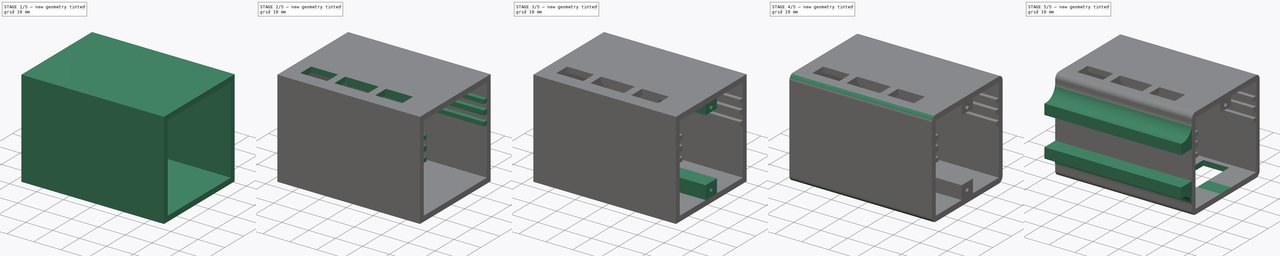
[diagram: build sequence overview — one tinted view per stage of 5, left to right]
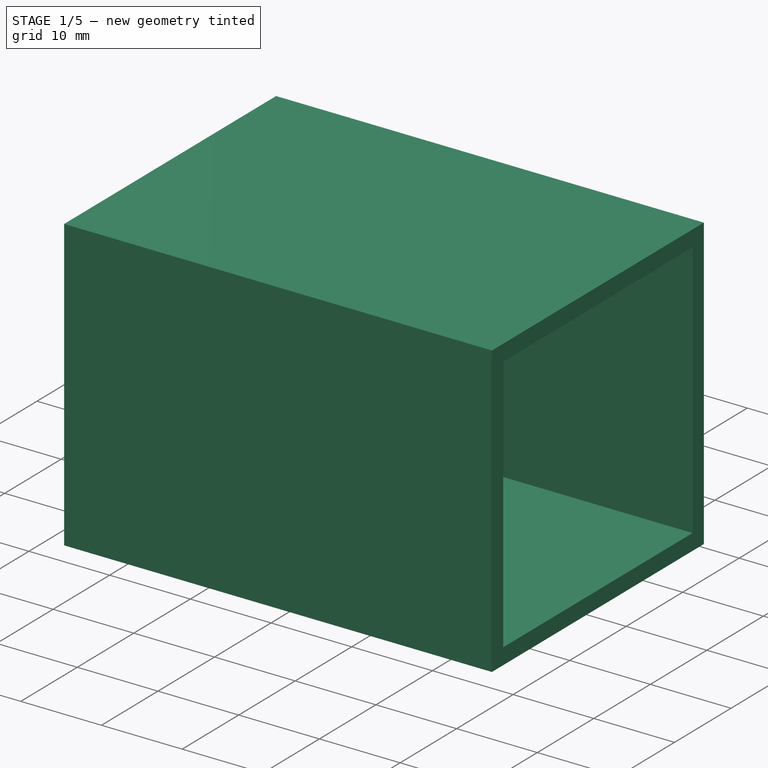
[diagram: stage 1 of 5 — iso view after this stage's code; geometry added in this stage tinted green]
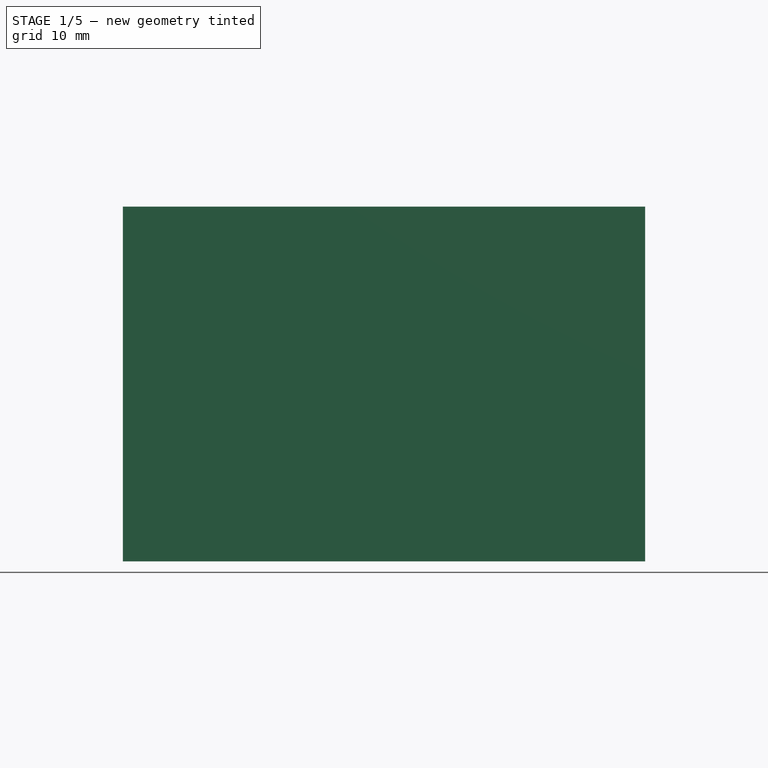
[diagram: stage 1 of 5 — front view after this stage's code; geometry added in this stage tinted green]
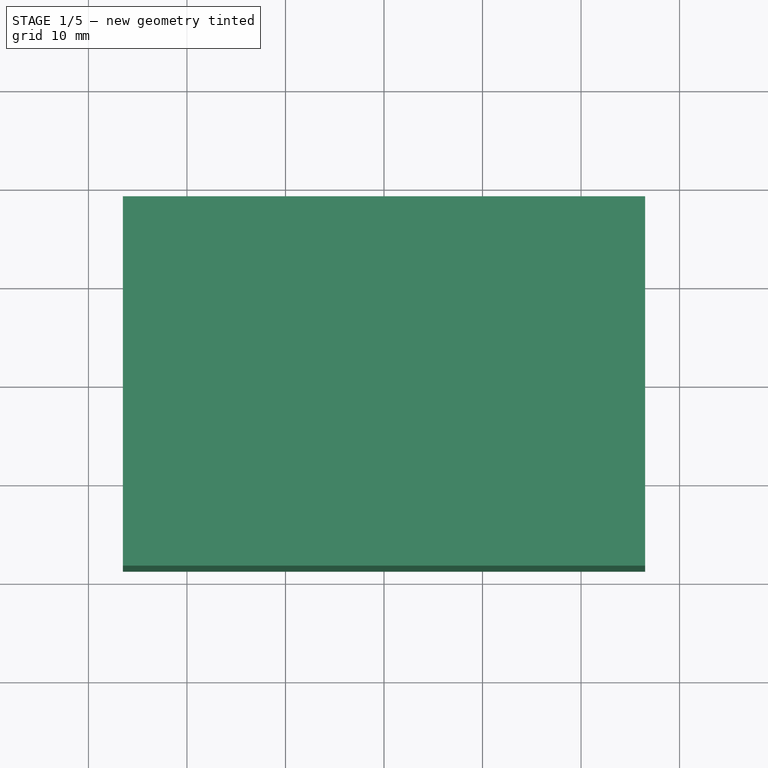
[diagram: stage 1 of 5 — top view after this stage's code; geometry added in this stage tinted green]
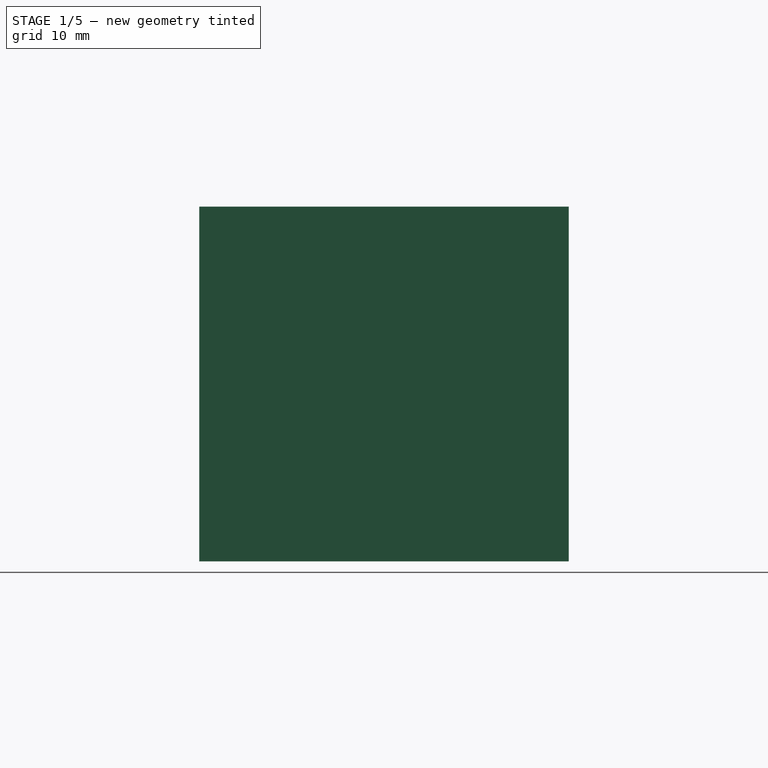
[diagram: stage 1 of 5 — right view after this stage's code; geometry added in this stage tinted green]
FCSTD DOCUMENT  (FreeCAD 0.19R24291 (Git))
Label: case_mk3
License: All rights reserved
LicenseURL: http://en.wikipedia.org/wiki/All_rights_reserved
objects: Sketcher::SketchObject×14, PartDesign::Pad×7, PartDesign::Pocket×7, PartDesign::Chamfer×2, PartDesign::Fillet×2, PartDesign::Body×1
note: 51 computed .brp shape members not serialized (recipe doc carries the construction recipe); baked Part::Feature solids carry a one-line shape summary decoded from their .brp

FEATURE [Sketcher::SketchObject] Sketch
  FullyConstrained = true
  MapMode = 5
  Support = -> [XY_Plane]
  sketch-geometry (8):
    g0: LineSegment StartX=-24.5 StartY=16.75 StartZ=0 EndX=24.5 EndY=16.75 EndZ=0
    g1: LineSegment StartX=24.5 StartY=16.75 StartZ=0 EndX=24.5 EndY=-16.75 EndZ=0
    g2: LineSegment StartX=24.5 StartY=-16.75 StartZ=0 EndX=-24.5 EndY=-16.75 EndZ=0
    g3: LineSegment StartX=-24.5 StartY=-16.75 StartZ=0 EndX=-24.5 EndY=16.75 EndZ=0
    g4: LineSegment StartX=-26.5 StartY=18.75 StartZ=0 EndX=26.5 EndY=18.75 EndZ=0
    g5: LineSegment StartX=26.5 StartY=18.75 StartZ=0 EndX=26.5 EndY=-18.75 EndZ=0
    g6: LineSegment StartX=26.5 StartY=-18.75 StartZ=0 EndX=-26.5 EndY=-18.75 EndZ=0
    g7: LineSegment StartX=-26.5 StartY=-18.75 StartZ=0 EndX=-26.5 EndY=18.75 EndZ=0
  constraints (24):
    c: Coincident(g0,g1)
    c: Coincident(g1,g2)
    c: Coincident(g2,g3)
    c: Coincident(g3,g0)
    c: Horizontal(g0)
    c: Horizontal(g2)
    c: Vertical(g1)
    c: Vertical(g3)
    c: DistanceY(g1,g1) = 33.5
    c: DistanceX(g0,g0) = 49
    c: DistanceX(g0,g-1) = 24.5
    c: DistanceY(g-1,g0) = 16.75
    c: Coincident(g4,g5)
    c: Coincident(g5,g6)
    c: Coincident(g6,g7)
    c: Coincident(g7,g4)
    c: Horizontal(g4)
    c: Horizontal(g6)
    c: Vertical(g5)
    c: Vertical(g7)
    c: DistanceX(g4,g0) = 2
    c: DistanceY(g0,g4) = 2
    c: DistanceX(g1,g5) = 2
    c: DistanceY(g5,g1) = 2
FEATURE [PartDesign::Pad] Pad
  Direction = (1,1,1)
  Length = 32
  Length2 = 100
  Profile = -> Sketch
  Type = 0
FEATURE [Sketcher::SketchObject] Sketch001
  ExternalGeometry = -> [Pad]
  FullyConstrained = true
  MapMode = 5
  Placement = pos=(0,0,32) rot=(0,0,1;0rad)
  Support = -> [Pad]
  sketch-geometry (4):
    g0: LineSegment StartX=-26.5 StartY=18.75 StartZ=0 EndX=26.5 EndY=18.75 EndZ=0
    g1: LineSegment StartX=26.5 StartY=18.75 StartZ=0 EndX=26.5 EndY=-18.75 EndZ=0
    g2: LineSegment StartX=26.5 StartY=-18.75 StartZ=0 EndX=-26.5 EndY=-18.75 EndZ=0
    g3: LineSegment StartX=-26.5 StartY=-18.75 StartZ=0 EndX=-26.5 EndY=18.75 EndZ=0
  constraints (11):
    c: Coincident(g0,g1)
    c: Coincident(g1,g2)
    c: Coincident(g2,g3)
    c: Coincident(g3,g0)
    c: Horizontal(g0)
    c: Horizontal(g2)
    c: Vertical(g1)
    c: Vertical(g3)
    c: Coincident(g-3,g1)
    c: DistanceX(g-4,g0) = 0
    c: DistanceY(g0,g-4) = 0
FEATURE [PartDesign::Pad] Pad001
  BaseFeature = -> Pad
  Direction = (1,1,1)
  Length = 2
  Length2 = 100
  Profile = -> Sketch001
  Type = 0
FEATURE [Sketcher::SketchObject] Sketch002
  ExternalGeometry = -> [Pad001]
  FullyConstrained = true
  MapMode = 5
  Placement = pos=(0,0,0) rot=(1,0,0;3.14159rad)
  Support = -> [Pad001]
  sketch-geometry (4):
    g0: LineSegment StartX=-26.5 StartY=18.75 StartZ=0 EndX=26.5 EndY=18.75 EndZ=0
    g1: LineSegment StartX=26.5 StartY=18.75 StartZ=0 EndX=26.5 EndY=-18.75 EndZ=0
    g2: LineSegment StartX=26.5 StartY=-18.75 StartZ=0 EndX=-26.5 EndY=-18.75 EndZ=0
    g3: LineSegment StartX=-26.5 StartY=-18.75 StartZ=0 EndX=-26.5 EndY=18.75 EndZ=0
  constraints (11):
    c: Coincident(g0,g1)
    c: Coincident(g1,g2)
    c: Coincident(g2,g3)
    c: Coincident(g3,g0)
    c: Horizontal(g0)
    c: Horizontal(g2)
    c: Vertical(g1)
    c: Vertical(g3)
    c: Coincident(g-3,g1)
    c: DistanceX(g-4,g0) = 0
    c: DistanceY(g0,g-4) = 0
FEATURE [PartDesign::Pad] Pad002
  BaseFeature = -> Pad001
  Direction = (1,1,1)
  Length = 2
  Length2 = 100
  Profile = -> Sketch002
  Type = 0
FEATURE [Sketcher::SketchObject] Sketch003
  ExternalGeometry = -> [Pad002]
  FullyConstrained = true
  MapMode = 5
  Placement = pos=(26.5,0,0) rot=(0.57735,0.57735,0.57735;2.0944rad)
  Support = -> [Pad002]
  sketch-geometry (4):
    g0: LineSegment StartX=-16.75 StartY=32 StartZ=0 EndX=16.75 EndY=32 EndZ=0
    g1: LineSegment StartX=16.75 StartY=32 StartZ=0 EndX=16.75 EndY=0 EndZ=0
    g2: LineSegment StartX=16.75 StartY=0 StartZ=0 EndX=-16.75 EndY=0 EndZ=0
    g3: LineSegment StartX=-16.75 StartY=0 StartZ=0 EndX=-16.75 EndY=32 EndZ=0
  constraints (12):
    c: Coincident(g0,g1)
    c: Coincident(g1,g2)
    c: Coincident(g2,g3)
    c: Coincident(g3,g0)
    c: Horizontal(g0)
    c: Horizontal(g2)
    c: Vertical(g1)
    c: Vertical(g3)
    c: PointOnObject(g1,g-1)
    c: DistanceY(g0,g-3) = 0
    c: DistanceX(g0,g-3) = 2
    c: DistanceX(g-4,g2) = 2
FEATURE [PartDesign::Pocket] Pocket
  BaseFeature = -> Pad002
  Length = 2
  Length2 = 100
  Profile = -> Sketch003
  Type = 0
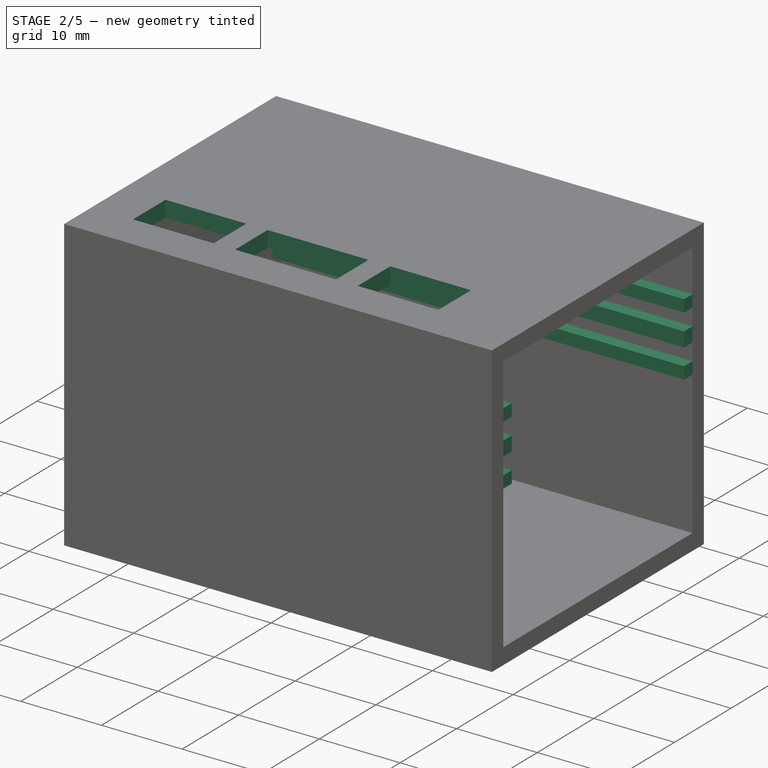
[diagram: stage 2 of 5 — iso view after this stage's code; geometry added in this stage tinted green]
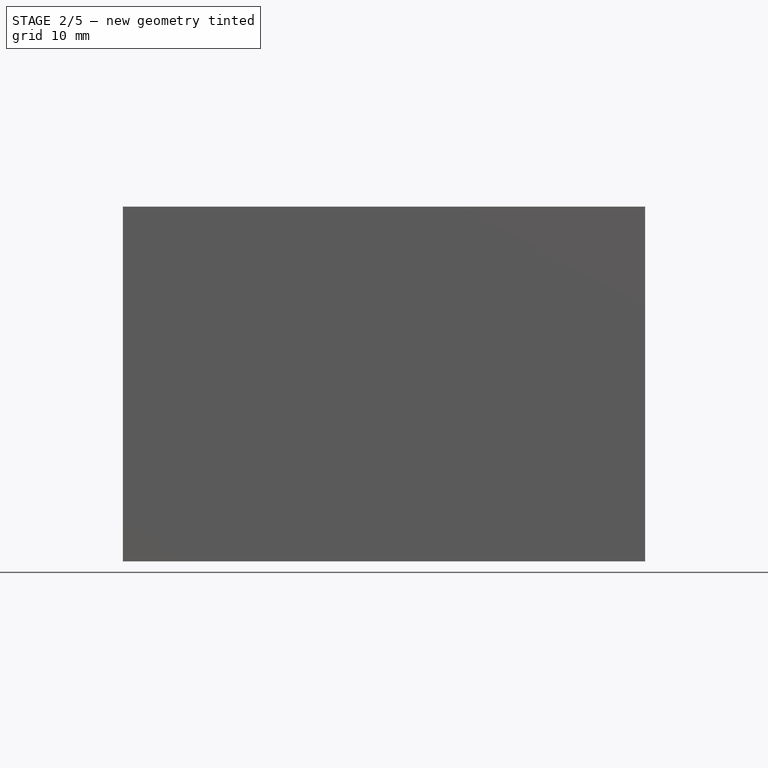
[diagram: stage 2 of 5 — front view after this stage's code; geometry added in this stage tinted green]
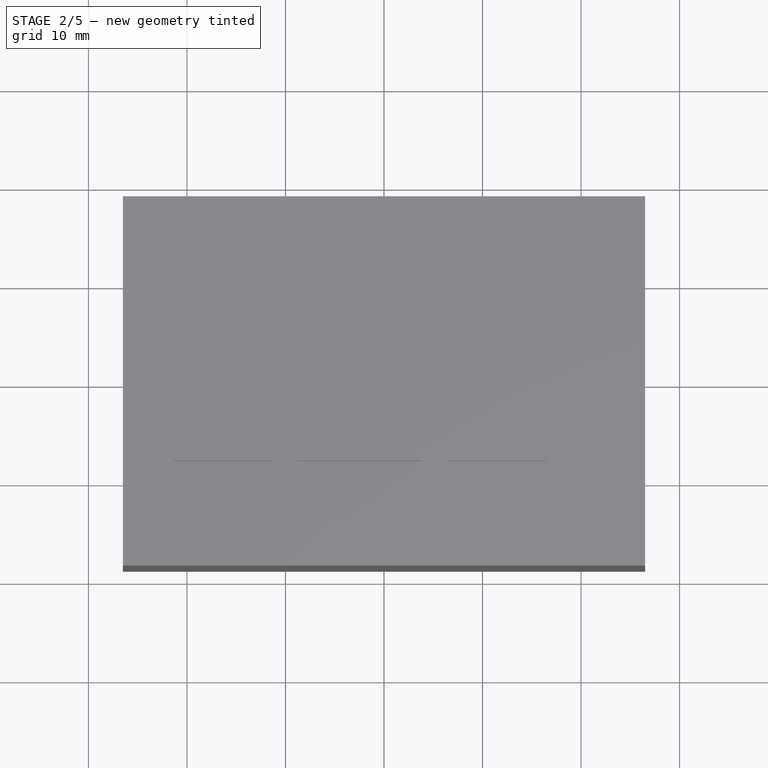
[diagram: stage 2 of 5 — top view after this stage's code; geometry added in this stage tinted green]
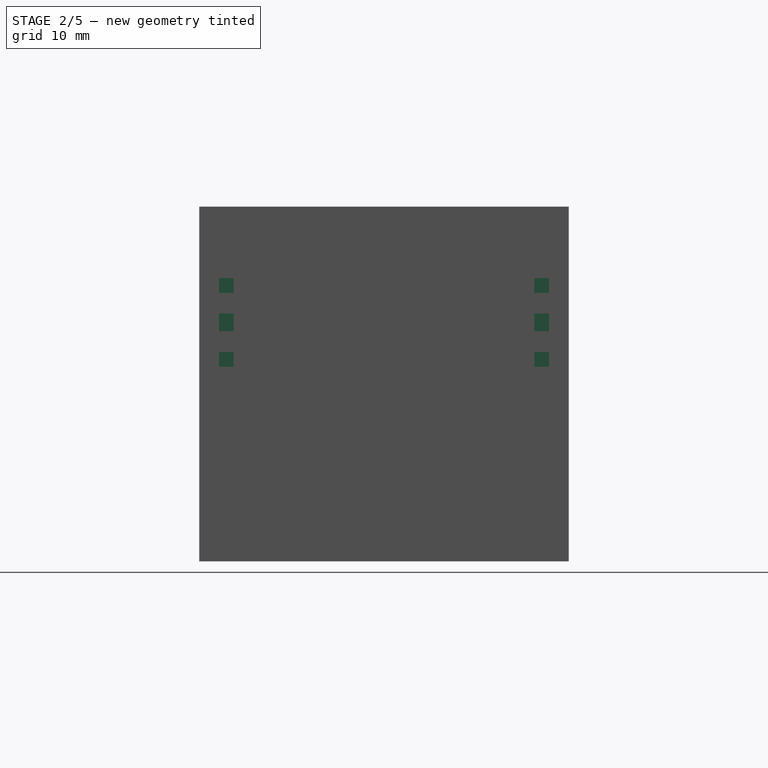
[diagram: stage 2 of 5 — right view after this stage's code; geometry added in this stage tinted green]
FEATURE [Sketcher::SketchObject] Sketch004
  ExternalGeometry = -> [Pocket]
  FullyConstrained = true
  MapMode = 5
  Placement = pos=(0,0,34) rot=(0,0,1;0rad)
  Support = -> [Pocket]
  sketch-geometry (12):
    g0: LineSegment StartX=-21.4 StartY=-8.1 StartZ=0 EndX=-11.4 EndY=-8.1 EndZ=0
    g1: LineSegment StartX=-11.4 StartY=-8.1 StartZ=0 EndX=-11.4 EndY=-13.85 EndZ=0
    g2: LineSegment StartX=-11.4 StartY=-13.85 StartZ=0 EndX=-21.4 EndY=-13.85 EndZ=0
    g3: LineSegment StartX=-21.4 StartY=-13.85 StartZ=0 EndX=-21.4 EndY=-8.1 EndZ=0
    g4: LineSegment StartX=-8.75 StartY=-8.1 StartZ=0 EndX=3.75 EndY=-8.1 EndZ=0
    g5: LineSegment StartX=3.75 StartY=-8.1 StartZ=0 EndX=3.75 EndY=-13.85 EndZ=0
    g6: LineSegment StartX=3.75 StartY=-13.85 StartZ=0 EndX=-8.75 EndY=-13.85 EndZ=0
    g7: LineSegment StartX=-8.75 StartY=-13.85 StartZ=0 EndX=-8.75 EndY=-8.1 EndZ=0
    g8: LineSegment StartX=6.45 StartY=-8.1 StartZ=0 EndX=16.45 EndY=-8.1 EndZ=0
    g9: LineSegment StartX=16.45 StartY=-8.1 StartZ=0 EndX=16.45 EndY=-13.85 EndZ=0
    g10: LineSegment StartX=16.45 StartY=-13.85 StartZ=0 EndX=6.45 EndY=-13.85 EndZ=0
    g11: LineSegment StartX=6.45 StartY=-13.85 StartZ=0 EndX=6.45 EndY=-8.1 EndZ=0
  constraints (36):
    c: Coincident(g0,g1)
    c: Coincident(g1,g2)
    c: Coincident(g2,g3)
    c: Coincident(g3,g0)
    c: Horizontal(g0)
    c: Horizontal(g2)
    c: Vertical(g1)
    c: Vertical(g3)
    c: Coincident(g4,g5)
    c: Coincident(g5,g6)
    c: Coincident(g6,g7)
    c: Coincident(g7,g4)
    c: Horizontal(g4)
    c: Horizontal(g6)
    c: Vertical(g5)
    c: Vertical(g7)
    c: Coincident(g8,g9)
    c: Coincident(g9,g10)
    c: Coincident(g10,g11)
    c: Coincident(g11,g8)
    c: Horizontal(g8)
    c: Horizontal(g10)
    c: Vertical(g9)
    c: Vertical(g11)
    c: Equal(g0,g8)
    c: DistanceX(g0,g0) = 10
    c: DistanceX(g4,g4) = 12.5
    c: Equal(g9,g5)
    c: Equal(g5,g1)
    c: DistanceY(g9,g9) = 5.75
    c: Horizontal(g9,g5)
    c: Horizontal(g5,g1)
    c: DistanceY(g-3,g9) = 4.9
    c: DistanceX(g-4,g2) = 5.1
    c: DistanceX(g1,g6) = 2.65
    c: DistanceX(g5,g10) = 2.7
FEATURE [PartDesign::Pocket] Pocket001
  BaseFeature = -> Pocket
  Length = 5
  Length2 = 100
  Profile = -> Sketch004
  Type = 0
FEATURE [Sketcher::SketchObject] Sketch005
  ExternalGeometry = -> [Pocket001]
  FullyConstrained = true
  MapMode = 5
  Placement = pos=(0,-16.75,0) rot=(0,0.707107,0.707107;3.14159rad)
  Support = -> [Pocket001]
  sketch-geometry (12):
    g0: LineSegment StartX=24.5 StartY=23.15 StartZ=0 EndX=-26.5 EndY=23.15 EndZ=0
    g1: LineSegment StartX=-26.5 StartY=23.15 StartZ=0 EndX=-26.5 EndY=21.35 EndZ=0
    g2: LineSegment StartX=-26.5 StartY=21.35 StartZ=0 EndX=24.5 EndY=21.35 EndZ=0
    g3: LineSegment StartX=24.5 StartY=21.35 StartZ=0 EndX=24.5 EndY=23.15 EndZ=0
    g4: LineSegment StartX=24.5 StartY=25.25 StartZ=0 EndX=-26.5 EndY=25.25 EndZ=0
    g5: LineSegment StartX=-26.5 StartY=25.25 StartZ=0 EndX=-26.5 EndY=26.75 EndZ=0
    g6: LineSegment StartX=-26.5 StartY=26.75 StartZ=0 EndX=24.5 EndY=26.75 EndZ=0
    g7: LineSegment StartX=24.5 StartY=26.75 StartZ=0 EndX=24.5 EndY=25.25 EndZ=0
    g8: LineSegment StartX=24.5 StartY=19.25 StartZ=0 EndX=-26.5 EndY=19.25 EndZ=0
    g9: LineSegment StartX=-26.5 StartY=19.25 StartZ=0 EndX=-26.5 EndY=17.75 EndZ=0
    g10: LineSegment StartX=-26.5 StartY=17.75 StartZ=0 EndX=24.5 EndY=17.75 EndZ=0
    g11: LineSegment StartX=24.5 StartY=17.75 StartZ=0 EndX=24.5 EndY=19.25 EndZ=0
  constraints (36):
    c: Coincident(g0,g1)
    c: Coincident(g1,g2)
    c: Coincident(g2,g3)
    c: Coincident(g3,g0)
    c: Horizontal(g0)
    c: Horizontal(g2)
    c: Vertical(g1)
    c: Vertical(g3)
    c: Coincident(g4,g5)
    c: Coincident(g5,g6)
    c: Coincident(g6,g7)
    c: Coincident(g7,g4)
    c: Horizontal(g4)
    c: Horizontal(g6)
    c: Vertical(g5)
    c: Vertical(g7)
    c: Vertical(g5,g0)
    c: Vertical(g0,g4)
    c: Vertical(g-4,g6)
    c: Vertical(g-3,g5)
    c: DistanceY(g1,g1) = 1.8
    c: DistanceY(g4,g-3) = 6.75
    c: DistanceY(g0,g4) = 2.1
    c: DistanceY(g5,g5) = 1.5
    c: Coincident(g8,g9)
    c: Coincident(g9,g10)
    c: Coincident(g10,g11)
    c: Coincident(g11,g8)
    c: Horizontal(g8)
    c: Horizontal(g10)
    c: Vertical(g9)
    c: Vertical(g11)
    c: Vertical(g2,g8)
    c: Vertical(g1,g8)
    c: DistanceY(g9,g9) = 1.5
    c: DistanceY(g8,g1) = 2.1
FEATURE [PartDesign::Pad] Pad003
  BaseFeature = -> Pocket001
  Direction = (1,1,1)
  Length = 33.5
  Length2 = 100
  Profile = -> Sketch005
  Type = 0
FEATURE [Sketcher::SketchObject] Sketch006
  ExternalGeometry = -> [Pad003]
  FullyConstrained = true
  MapMode = 5
  Placement = pos=(26.5,0,0) rot=(0.57735,0.57735,0.57735;2.0944rad)
  Support = -> [Pad003]
  sketch-geometry (4):
    g0: LineSegment StartX=-15.25 StartY=26.75 StartZ=0 EndX=15.25 EndY=26.75 EndZ=0
    g1: LineSegment StartX=15.25 StartY=26.75 StartZ=0 EndX=15.25 EndY=17.75 EndZ=0
    g2: LineSegment StartX=15.25 StartY=17.75 StartZ=0 EndX=-15.25 EndY=17.75 EndZ=0
    g3: LineSegment StartX=-15.25 StartY=17.75 StartZ=0 EndX=-15.25 EndY=26.75 EndZ=0
  constraints (12):
    c: Coincident(g0,g1)
    c: Coincident(g1,g2)
    c: Coincident(g2,g3)
    c: Coincident(g3,g0)
    c: Horizontal(g0)
    c: Horizontal(g2)
    c: Vertical(g1)
    c: Vertical(g3)
    c: Horizontal(g0,g-6)
    c: Horizontal(g2,g-5)
    c: DistanceX(g-5,g2) = 1.5
    c: DistanceX(g1,g-4) = 1.5
FEATURE [PartDesign::Pocket] Pocket002
  BaseFeature = -> Pad003
  Length = 51
  Length2 = 100
  Profile = -> Sketch006
  Type = 0
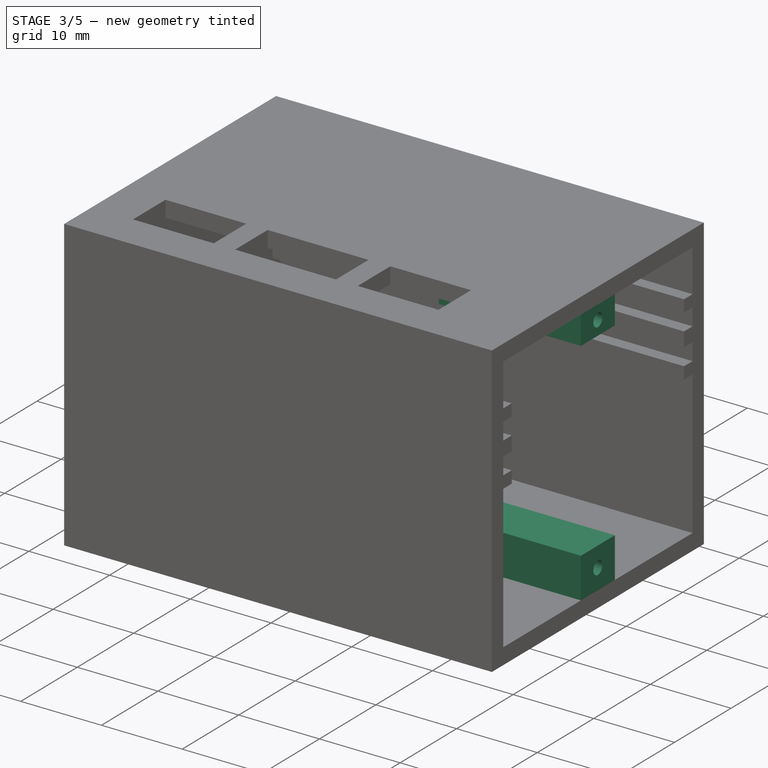
[diagram: stage 3 of 5 — iso view after this stage's code; geometry added in this stage tinted green]
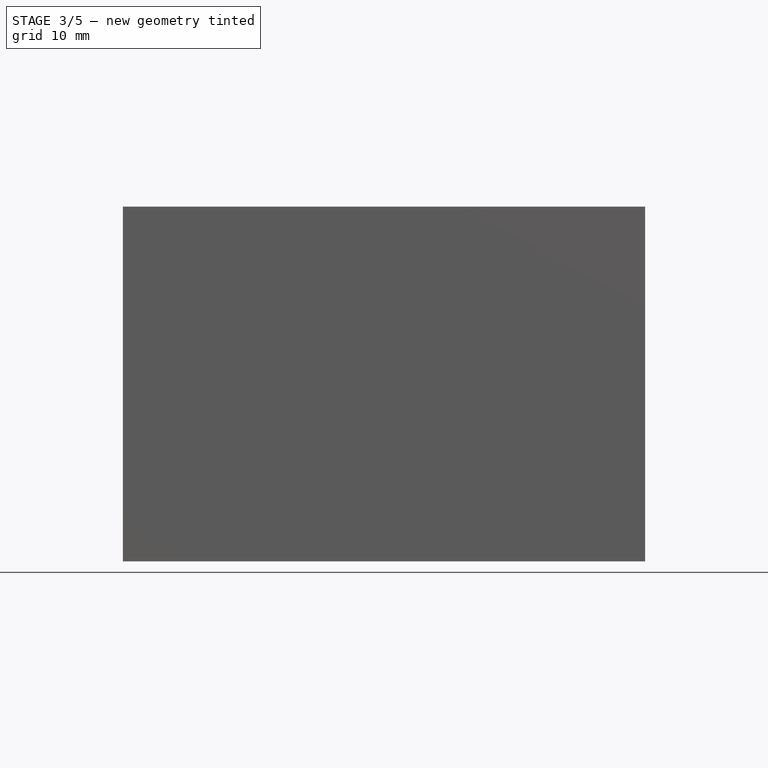
[diagram: stage 3 of 5 — front view after this stage's code; geometry added in this stage tinted green]
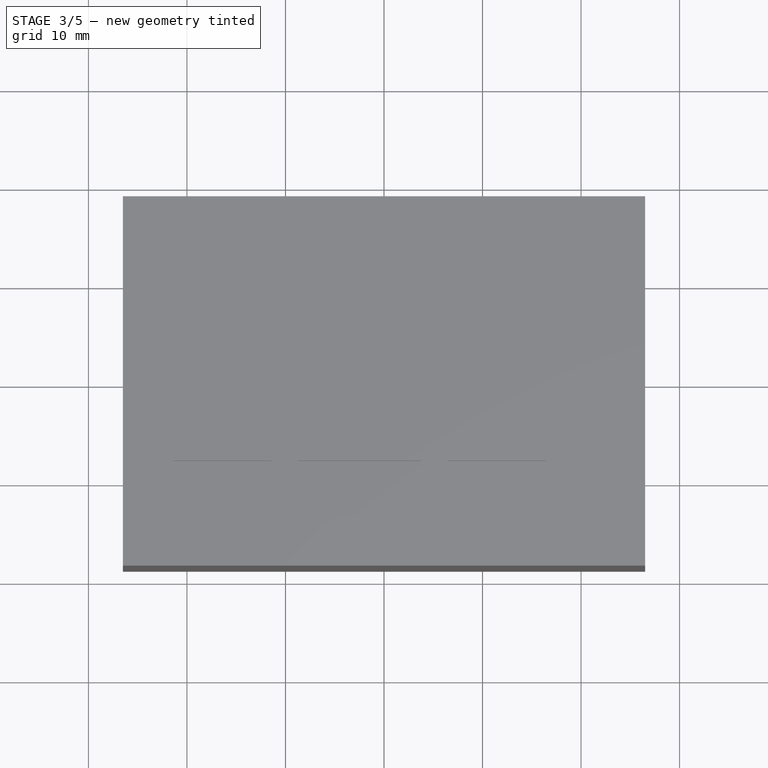
[diagram: stage 3 of 5 — top view after this stage's code; geometry added in this stage tinted green]
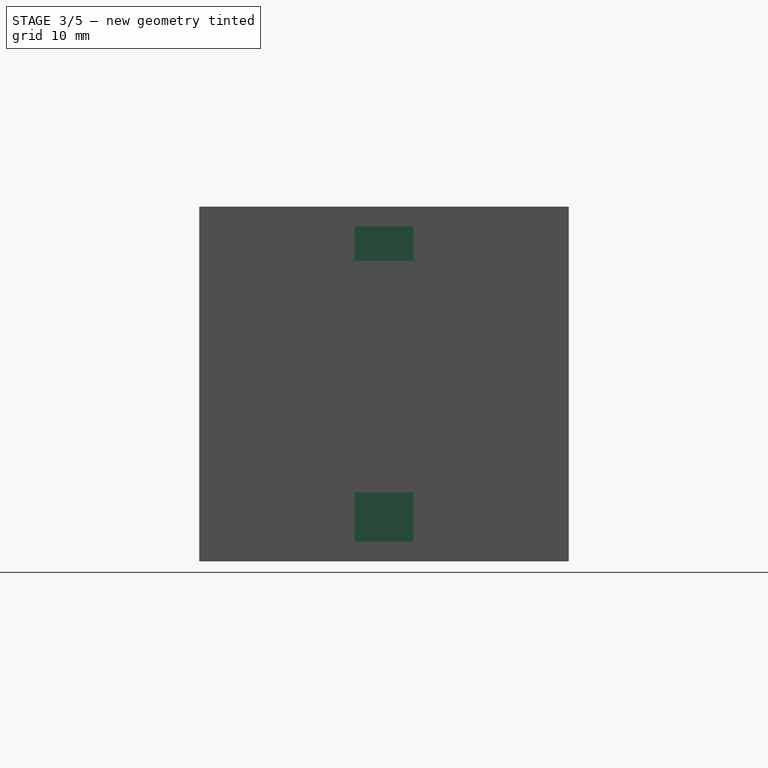
[diagram: stage 3 of 5 — right view after this stage's code; geometry added in this stage tinted green]
FEATURE [Sketcher::SketchObject] Sketch007
  ExternalGeometry = -> [Pocket002]
  FullyConstrained = false
  MapMode = 5
  Support = -> [Pocket002]
  sketch-geometry (4):
    g0: LineSegment StartX=8.88376 StartY=3 StartZ=0 EndX=26.5 EndY=3 EndZ=0
    g1: LineSegment StartX=26.5 StartY=3 StartZ=0 EndX=26.5 EndY=-3 EndZ=0
    g2: LineSegment StartX=26.5 StartY=-3 StartZ=0 EndX=8.88376 EndY=-3 EndZ=0
    g3: LineSegment StartX=8.88376 StartY=-3 StartZ=0 EndX=8.88376 EndY=3 EndZ=0
  constraints (11):
    c: Coincident(g0,g1)
    c: Coincident(g1,g2)
    c: Coincident(g2,g3)
    c: Coincident(g3,g0)
    c: Horizontal(g0)
    c: Horizontal(g2)
    c: Vertical(g1)
    c: Vertical(g3)
    c: DistanceX(g0,g-3) = 0
    c: DistanceY(g1,g1) = 6
    c: DistanceY(g2,g-1) = 3
FEATURE [PartDesign::Pad] Pad004
  BaseFeature = -> Pocket002
  Direction = (1,1,1)
  Length = 5
  Length2 = 100
  Profile = -> Sketch007
  Type = 0
FEATURE [Sketcher::SketchObject] Sketch008
  ExternalGeometry = -> [Pad004]
  FullyConstrained = true
  MapMode = 5
  Placement = pos=(26.5,0,0) rot=(0.57735,0.57735,0.57735;2.0944rad)
  Support = -> [Pad004]
  sketch-geometry (1):
    g0: Circle CenterX=0 CenterY=2.5 CenterZ=0 NormalX=0 NormalY=0 NormalZ=1 AngleXU=0 Radius=0.8
  constraints (3):
    c: PointOnObject(g0,g-2)
    c: Diameter(g0) = 1.6
    c: DistanceY(g-3,g0) = 4.5
FEATURE [PartDesign::Pocket] Pocket003
  BaseFeature = -> Pad004
  Length = 5
  Length2 = 100
  Profile = -> Sketch008
  Type = 0
FEATURE [Sketcher::SketchObject] Sketch009
  ExternalGeometry = -> [Pocket003]
  FullyConstrained = true
  MapMode = 5
  Placement = pos=(0,0,32) rot=(1,0,0;3.14159rad)
  Support = -> [Pocket003]
  sketch-geometry (4):
    g0: LineSegment StartX=8.88376 StartY=3 StartZ=0 EndX=26.5 EndY=3 EndZ=0
    g1: LineSegment StartX=26.5 StartY=3 StartZ=0 EndX=26.5 EndY=-3 EndZ=0
    g2: LineSegment StartX=26.5 StartY=-3 StartZ=0 EndX=8.88376 EndY=-3 EndZ=0
    g3: LineSegment StartX=8.88376 StartY=-3 StartZ=0 EndX=8.88376 EndY=3 EndZ=0
  constraints (11):
    c: Coincident(g0,g1)
    c: Coincident(g1,g2)
    c: Coincident(g2,g3)
    c: Coincident(g3,g0)
    c: Horizontal(g0)
    c: Horizontal(g2)
    c: Vertical(g1)
    c: Vertical(g3)
    c: Coincident(g1,g-3)
    c: DistanceY(g0,g-4) = 0
    c: DistanceX(g-5,g0) = 0
FEATURE [PartDesign::Pad] Pad005
  BaseFeature = -> Pocket003
  Direction = (1,1,1)
  Length = 3.5
  Length2 = 100
  Profile = -> Sketch009
  Type = 0
FEATURE [Sketcher::SketchObject] Sketch010
  ExternalGeometry = -> [Pad005]
  FullyConstrained = true
  MapMode = 5
  Placement = pos=(26.5,0,0) rot=(0.57735,0.57735,0.57735;2.0944rad)
  Support = -> [Pad005]
  sketch-geometry (1):
    g0: Circle CenterX=0 CenterY=30.25 CenterZ=0 NormalX=0 NormalY=0 NormalZ=1 AngleXU=0 Radius=0.8
  constraints (3):
    c: PointOnObject(g0,g-2)
    c: Diameter(g0) = 1.6
    c: DistanceY(g0,g-3) = 3.75
FEATURE [PartDesign::Pocket] Pocket004
  BaseFeature = -> Pad005
  Length = 6
  Length2 = 100
  Profile = -> Sketch010
  Type = 0
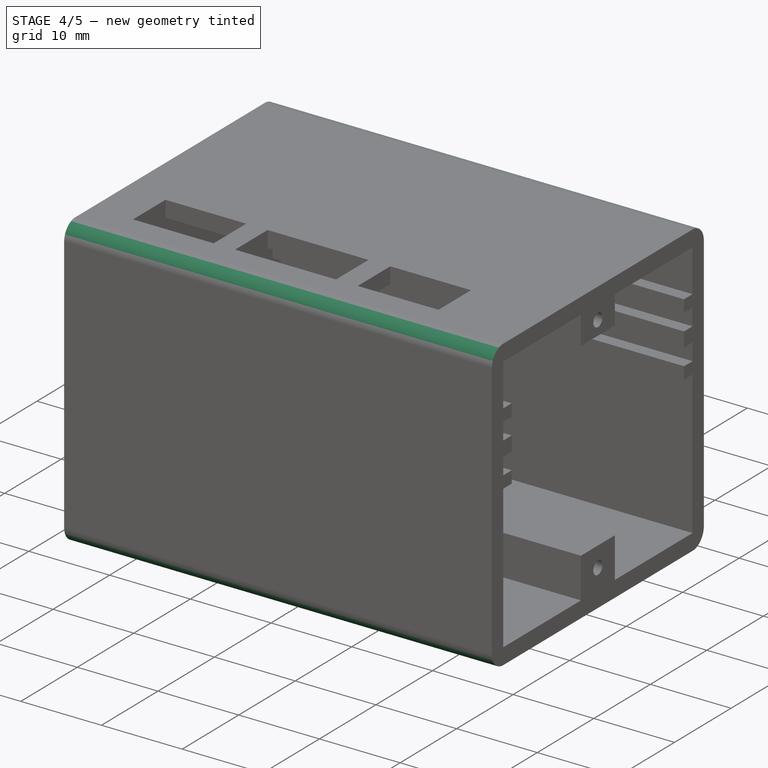
[diagram: stage 4 of 5 — iso view after this stage's code; geometry added in this stage tinted green]
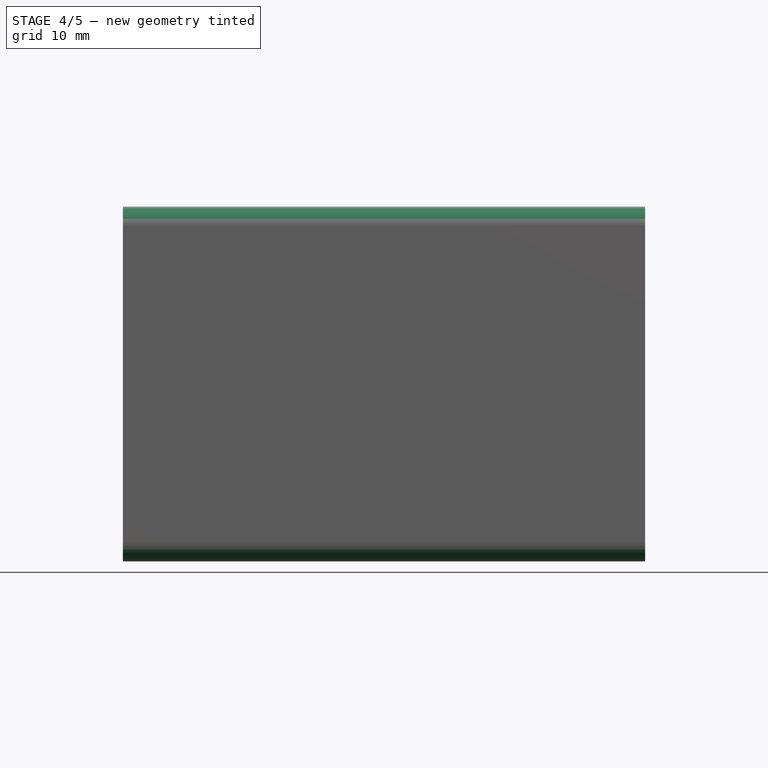
[diagram: stage 4 of 5 — front view after this stage's code; geometry added in this stage tinted green]
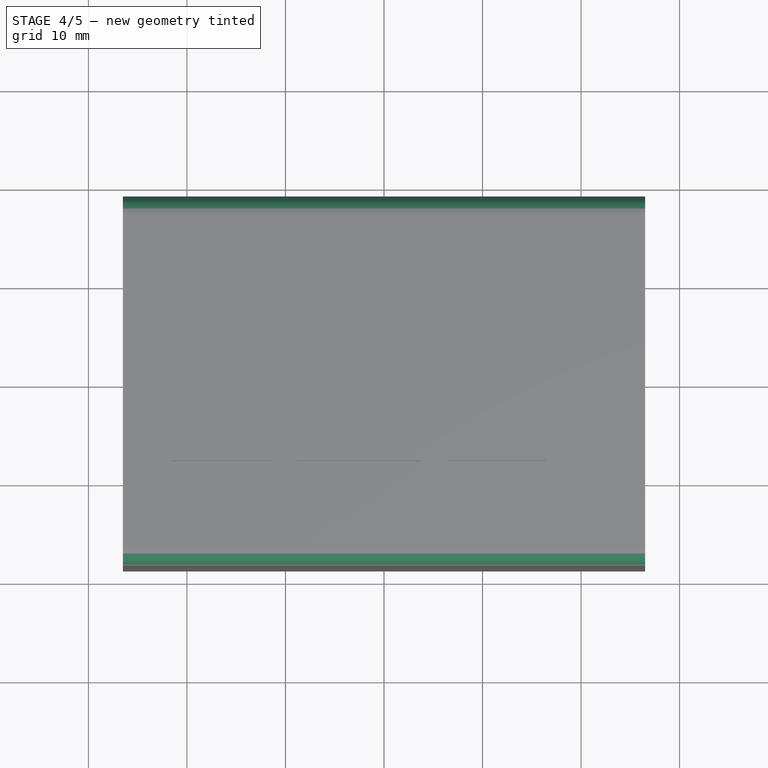
[diagram: stage 4 of 5 — top view after this stage's code; geometry added in this stage tinted green]
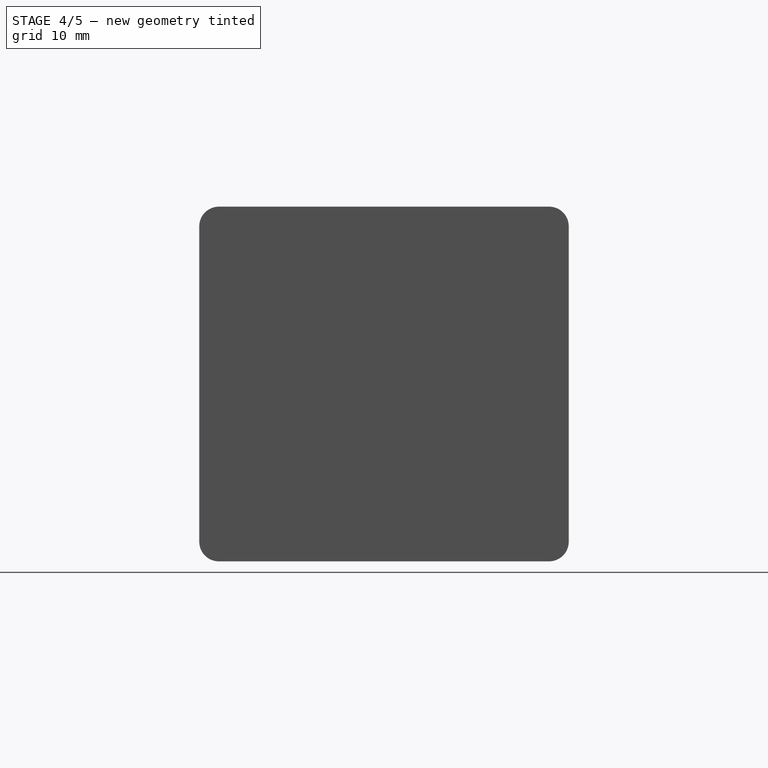
[diagram: stage 4 of 5 — right view after this stage's code; geometry added in this stage tinted green]
FEATURE [PartDesign::Chamfer] Chamfer
  Angle = 45
  Base = -> Pocket004 [Edge208]
  BaseFeature = -> Pocket004
  ChamferType = 0
  FlipDirection = false
  Size = 3.499
  Size2 = 1
  SupportTransform = false
FEATURE [PartDesign::Chamfer] Chamfer001
  Angle = 45
  Base = -> Chamfer [Edge229]
  BaseFeature = -> Chamfer
  ChamferType = 0
  FlipDirection = false
  Size = 4.99
  Size2 = 1
  SupportTransform = false
FEATURE [PartDesign::Fillet] Fillet
  Base = -> Chamfer001 [Edge141,Edge143,Edge60,Edge57]
  BaseFeature = -> Chamfer001
  Radius = 1.99
  SupportTransform = false
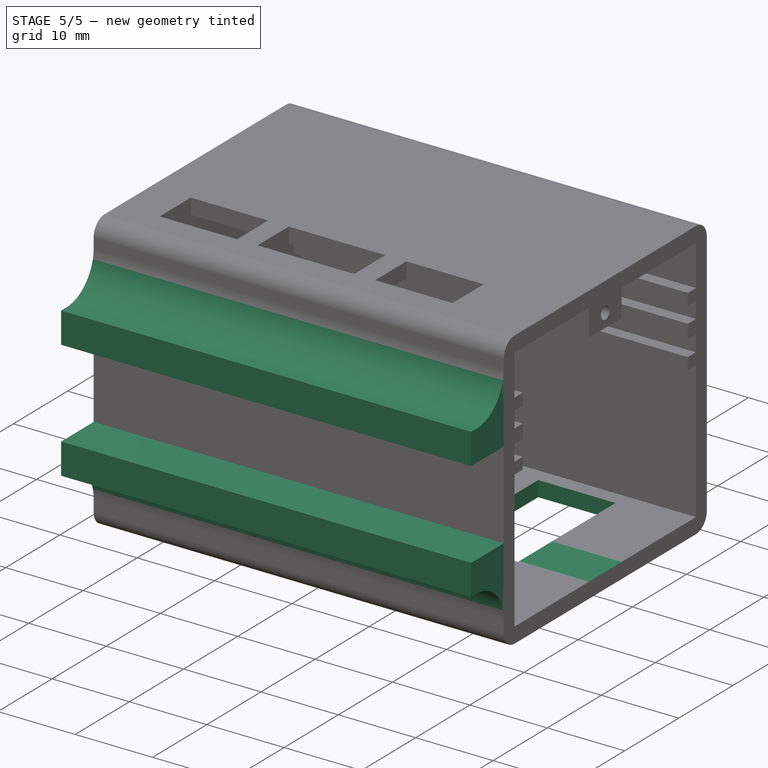
[diagram: stage 5 of 5 — iso view after this stage's code; geometry added in this stage tinted green]
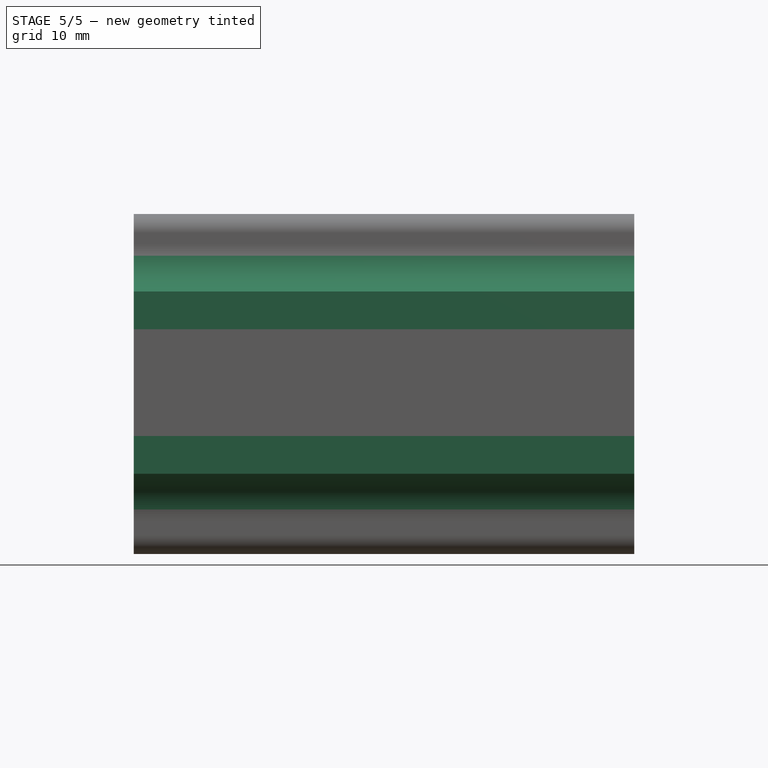
[diagram: stage 5 of 5 — front view after this stage's code; geometry added in this stage tinted green]
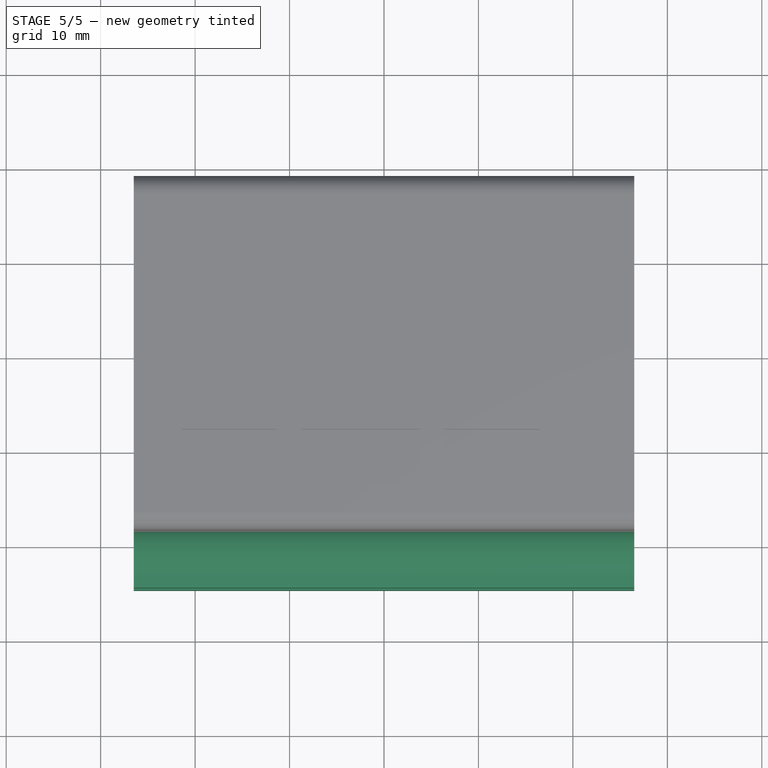
[diagram: stage 5 of 5 — top view after this stage's code; geometry added in this stage tinted green]
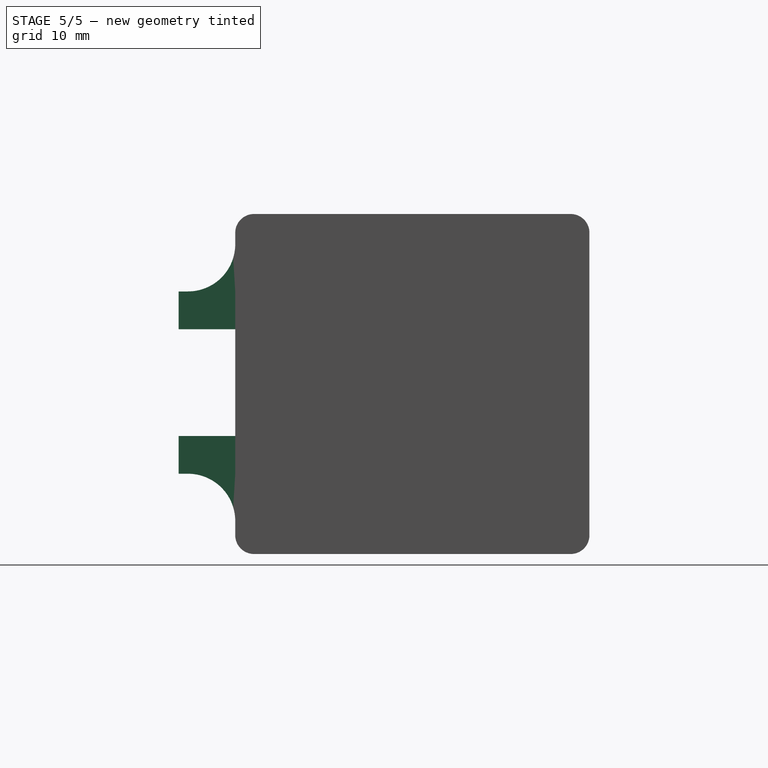
[diagram: stage 5 of 5 — right view after this stage's code; geometry added in this stage tinted green]
FEATURE [Sketcher::SketchObject] Sketch012
  FullyConstrained = false
  MapMode = 5
  Placement = pos=(0,-18.75,0) rot=(1,0,0;1.5708rad)
  sketch-geometry (8):
    g0: LineSegment StartX=-26.5 StartY=25.8 StartZ=0 EndX=26.5 EndY=25.8 EndZ=0
    g1: LineSegment StartX=26.5 StartY=25.8 StartZ=0 EndX=26.5 EndY=21.8 EndZ=0
    g2: LineSegment StartX=26.5 StartY=21.8 StartZ=0 EndX=-26.5 EndY=21.8 EndZ=0
    g3: LineSegment StartX=-26.5 StartY=21.8 StartZ=0 EndX=-26.5 EndY=25.8 EndZ=0
    g4: LineSegment StartX=-26.5 StartY=10.5 StartZ=0 EndX=26.5 EndY=10.5 EndZ=0
    g5: LineSegment StartX=26.5 StartY=10.5 StartZ=0 EndX=26.5 EndY=6.5 EndZ=0
    g6: LineSegment StartX=26.5 StartY=6.5 StartZ=0 EndX=-26.5 EndY=6.5 EndZ=0
    g7: LineSegment StartX=-26.5 StartY=6.5 StartZ=0 EndX=-26.5 EndY=10.5 EndZ=0
  constraints (20):
    c: Coincident(g0,g1)
    c: Coincident(g1,g2)
    c: Coincident(g2,g3)
    c: Coincident(g3,g0)
    c: Horizontal(g0)
    c: Horizontal(g2)
    c: Vertical(g1)
    c: Vertical(g3)
    c: Coincident(g4,g5)
    c: Coincident(g5,g6)
    c: Coincident(g6,g7)
    c: Coincident(g7,g4)
    c: Horizontal(g4)
    c: Horizontal(g6)
    c: Vertical(g5)
    c: Vertical(g7)
    c: Equal(g5,g1)
    c: DistanceY(g1,g1) = 4
    c: DistanceY(g4,g1) = 11.3
    c: DistanceY(g-1,g5) = 6.5
FEATURE [PartDesign::Pad] Pad006
  BaseFeature = -> Fillet
  Direction = (1,1,1)
  Length = 6
  Length2 = 100
  Profile = -> Sketch012
  Type = 0
FEATURE [PartDesign::Fillet] Fillet001
  Base = -> Pad006 [Edge56,Edge66]
  BaseFeature = -> Pad006
  Radius = 5
  SupportTransform = false
FEATURE [Sketcher::SketchObject] Sketch013
  ExternalGeometry = -> [Fillet001]
  FullyConstrained = true
  MapMode = 5
  Placement = pos=(26.5,0,0) rot=(0.57735,0.57735,0.57735;2.0944rad)
  Support = -> [Fillet001]
  sketch-geometry (4):
    g0: LineSegment StartX=-3 StartY=5 StartZ=0 EndX=3 EndY=5 EndZ=0
    g1: LineSegment StartX=3 StartY=5 StartZ=0 EndX=3 EndY=0 EndZ=0
    g2: LineSegment StartX=3 StartY=0 StartZ=0 EndX=-3 EndY=0 EndZ=0
    g3: LineSegment StartX=-3 StartY=0 StartZ=0 EndX=-3 EndY=5 EndZ=0
  constraints (11):
    c: Coincident(g0,g1)
    c: Coincident(g1,g2)
    c: Coincident(g2,g3)
    c: Coincident(g3,g0)
    c: Horizontal(g0)
    c: Horizontal(g2)
    c: Vertical(g1)
    c: Vertical(g3)
    c: PointOnObject(g1,g-1)
    c: DistanceX(g1,g-4) = 0
    c: Coincident(g0,g-3)
FEATURE [PartDesign::Pocket] Pocket005
  BaseFeature = -> Fillet001
  Length = 20
  Length2 = 100
  Profile = -> Sketch013
  Type = 0
FEATURE [Sketcher::SketchObject] Sketch014
  ExternalGeometry = -> [Pocket005]
  FullyConstrained = true
  MapMode = 5
  Placement = pos=(0,0,-2) rot=(1,0,0;3.14159rad)
  Support = -> [Pocket005]
  sketch-geometry (4):
    g0: LineSegment StartX=7.5 StartY=-14.75 StartZ=0 EndX=17.5 EndY=-14.75 EndZ=0
    g1: LineSegment StartX=17.5 StartY=-14.75 StartZ=0 EndX=17.5 EndY=3.25 EndZ=0
    g2: LineSegment StartX=17.5 StartY=3.25 StartZ=0 EndX=7.5 EndY=3.25 EndZ=0
    g3: LineSegment StartX=7.5 StartY=3.25 StartZ=0 EndX=7.5 EndY=-14.75 EndZ=0
  constraints (12):
    c: Coincident(g0,g1)
    c: Coincident(g1,g2)
    c: Coincident(g2,g3)
    c: Coincident(g3,g0)
    c: Horizontal(g0)
    c: Horizontal(g2)
    c: Vertical(g1)
    c: Vertical(g3)
    c: DistanceX(g2,g2) = 10
    c: DistanceY(g3,g3) = 18
    c: DistanceY(g-3,g0) = 2
    c: DistanceX(g-4,g2) = 32
FEATURE [PartDesign::Pocket] Pocket006
  BaseFeature = -> Pocket005
  Length = 5
  Length2 = 100
  Profile = -> Sketch014
  Type = 0
FEATURE [PartDesign::Body] Body
  Group = -> [Sketch,Pad,Sketch001,Pad001,Sketch002,Pad002,Sketch003,Pocket,Sketch004,Pocket001,Sketch005,Pad003,Sketch006,Pocket002,Sketch007,Pad004,Sketch008,Pocket003,Sketch009,Pad005,Sketch010,Pocket004,Chamfer,Chamfer001,Fillet,Sketch012,Pad006,Fillet001,Sketch013,Pocket005,Sketch014,Pocket006]
  Origin = -> Origin
  Tip = -> Pocket006
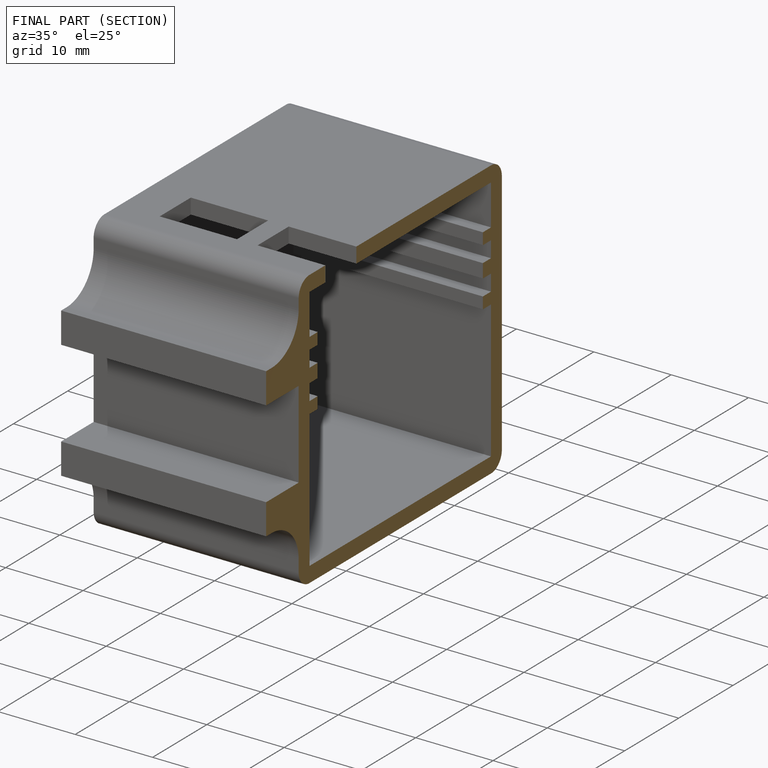
[diagram: finished part — half-section view (interior)]
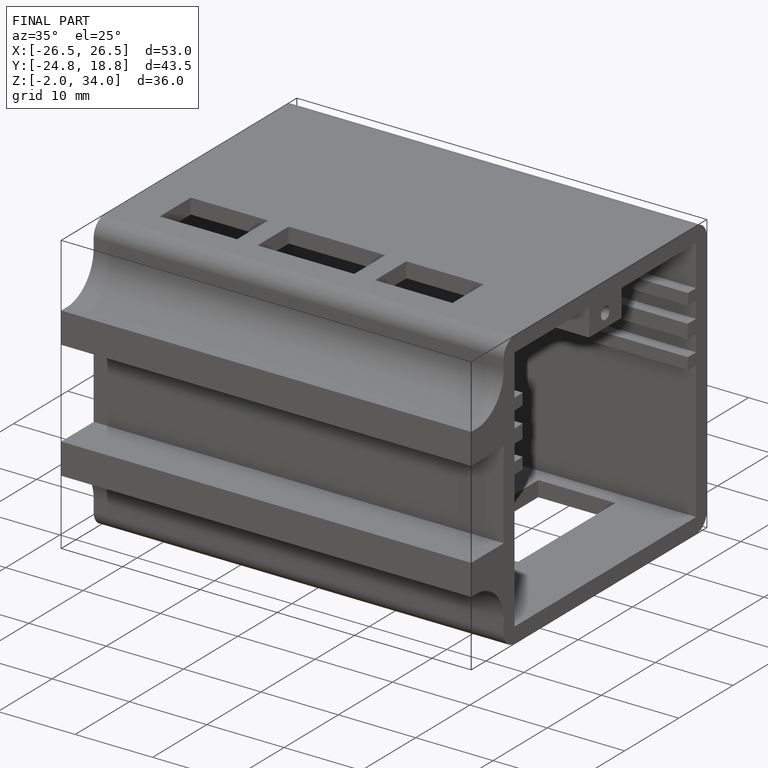
[diagram: finished part — iso view with bounding-box wireframe]
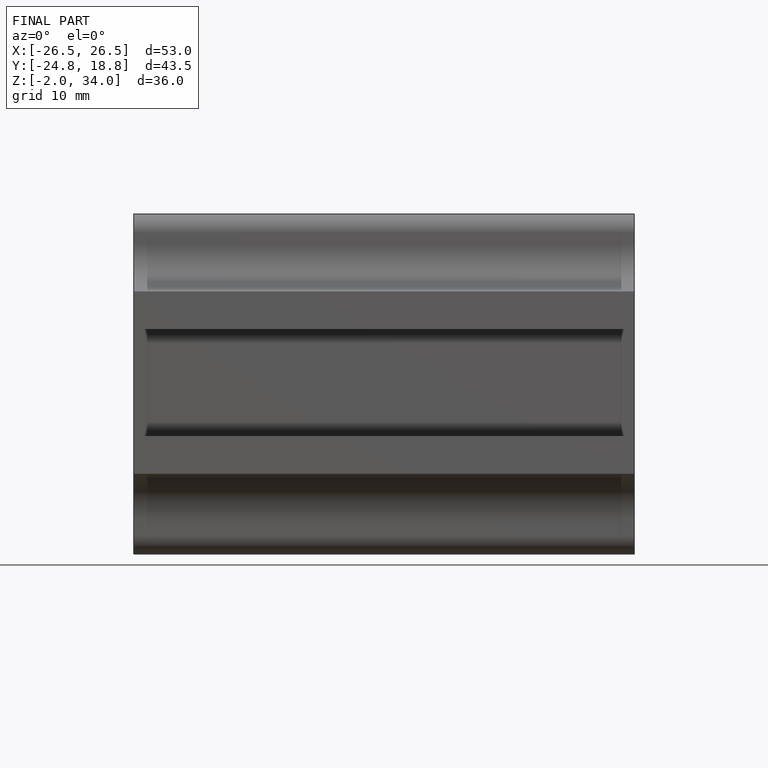
[diagram: finished part — front view with bounding-box wireframe]
